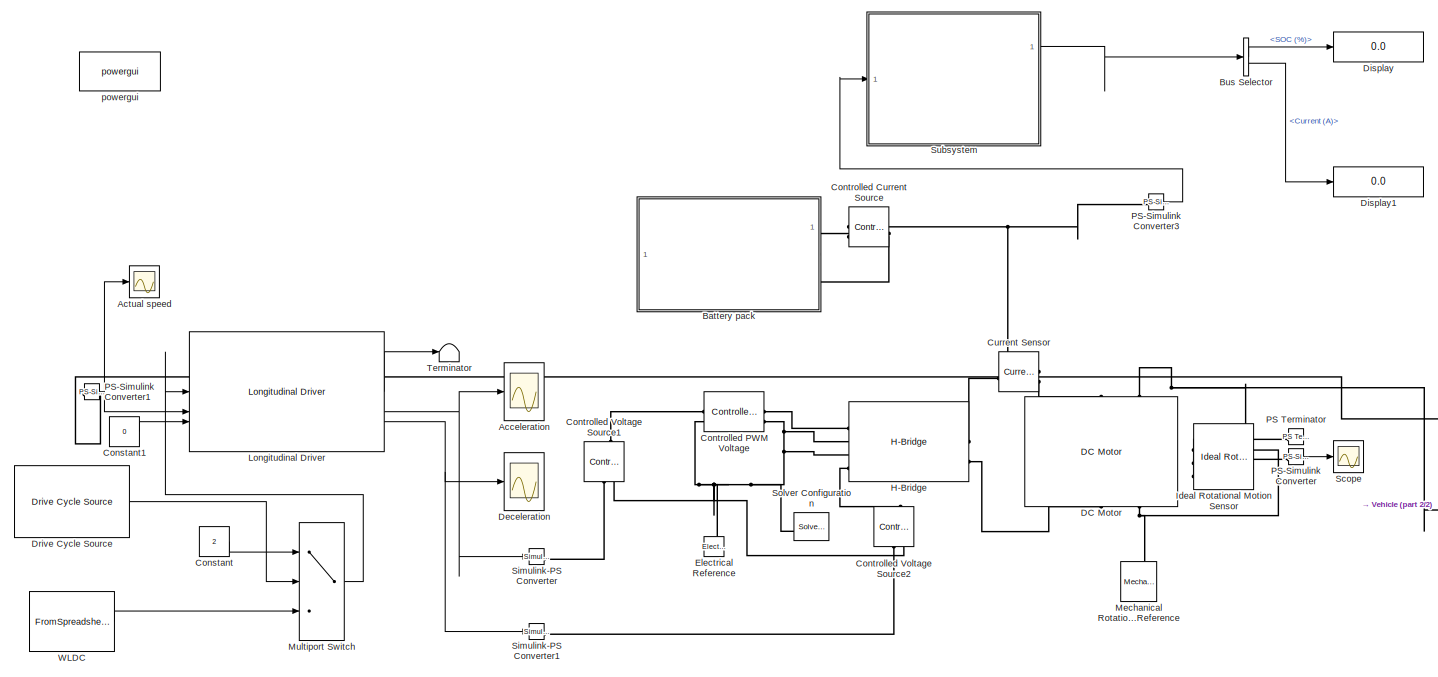
[diagram: root canvas - part 1/2, center side, full height]
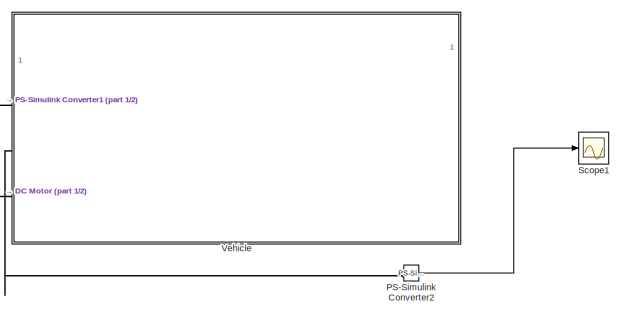
[diagram: root canvas - part 2/2, bottom right region]
MODEL slx_5bb3d1f6f6ad
KIND model
CONFIG AbsTol = auto
CONFIG EnableMultiTasking = off
CONFIG FixedStep = auto
CONFIG MaxStep = auto
CONFIG MinStep = auto
CONFIG RelTol = 1e-3
CONFIG SampleTimeConstraint = Unconstrained
CONFIG SolverName = VariableStepAuto
CONFIG StartTime = 0.0
CONFIG StopTime = 10.0
BLOCK [Scope] Acceleration
  Floating = off
  NumInputPorts = 1
  ScopeSpecificationString = Simulink.scopes.TimeScopeBlockCfg('CurrentConfiguration', extmgr.ConfigurationSet(extmgr.Configuration('Core','General UI',true),extmgr.Configuration('Core','Source UI',true),extmgr.Configuration('Sources','WiredSimulink',true,'DataLoggingVariableName','ScopeData1'),extmgr.Configuration('Visuals','Time Domain',true),extmgr.Configuration('Tools','Plot Navigation',true),extmgr.Configuration('Tools',...<+40ch>
BLOCK [Scope] Actual speed
  Floating = off
  NumInputPorts = 1
  ScopeSpecificationString = Simulink.scopes.TimeScopeBlockCfg('CurrentConfiguration', extmgr.ConfigurationSet(extmgr.Configuration('Core','General UI',true),extmgr.Configuration('Core','Source UI',true),extmgr.Configuration('Sources','WiredSimulink',true,'DataLoggingVariableName','ScopeData3'),extmgr.Configuration('Visuals','Time Domain',true),extmgr.Configuration('Tools','Plot Navigation',true),extmgr.Configuration('Tools',...<+40ch>
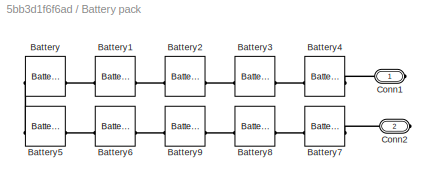
BLOCK [SubSystem] Battery pack
BLOCK [Reference] Battery pack/Battery  REF=batteryecm_lib/Battery
  LibrarySourceBlock = ee_lib/Sources/Battery
  SourceBlock = batteryecm_lib/Battery
  SourceType = Battery
BLOCK [Reference] Battery pack/Battery1  REF=batteryecm_lib/Battery
  LibrarySourceBlock = ee_lib/Sources/Battery
  SourceBlock = batteryecm_lib/Battery
  SourceType = Battery
BLOCK [Reference] Battery pack/Battery2  REF=batteryecm_lib/Battery
  LibrarySourceBlock = ee_lib/Sources/Battery
  SourceBlock = batteryecm_lib/Battery
  SourceType = Battery
BLOCK [Reference] Battery pack/Battery3  REF=batteryecm_lib/Battery
  LibrarySourceBlock = ee_lib/Sources/Battery
  SourceBlock = batteryecm_lib/Battery
  SourceType = Battery
BLOCK [Reference] Battery pack/Battery4  REF=batteryecm_lib/Battery
  LibrarySourceBlock = ee_lib/Sources/Battery
  SourceBlock = batteryecm_lib/Battery
  SourceType = Battery
BLOCK [Reference] Battery pack/Battery5  REF=batteryecm_lib/Battery
  LibrarySourceBlock = ee_lib/Sources/Battery
  NameLocation = top
  SourceBlock = batteryecm_lib/Battery
  SourceType = Battery
BLOCK [Reference] Battery pack/Battery6  REF=batteryecm_lib/Battery
  LibrarySourceBlock = ee_lib/Sources/Battery
  SourceBlock = batteryecm_lib/Battery
  SourceType = Battery
BLOCK [Reference] Battery pack/Battery7  REF=batteryecm_lib/Battery
  LibrarySourceBlock = ee_lib/Sources/Battery
  SourceBlock = batteryecm_lib/Battery
  SourceType = Battery
BLOCK [Reference] Battery pack/Battery8  REF=batteryecm_lib/Battery
  LibrarySourceBlock = ee_lib/Sources/Battery
  SourceBlock = batteryecm_lib/Battery
  SourceType = Battery
BLOCK [Reference] Battery pack/Battery9  REF=batteryecm_lib/Battery
  LibrarySourceBlock = ee_lib/Sources/Battery
  SourceBlock = batteryecm_lib/Battery
  SourceType = Battery
BLOCK [PMIOPort] Battery pack/Conn1
  Side = Right
BLOCK [PMIOPort] Battery pack/Conn2
  Port = 2
  Side = Right
BLOCK [BusSelector] Bus Selector
  OutputSignals = SOC (%),Current (A)
BLOCK [Constant] Constant
  Value = 2
BLOCK [Constant] Constant1
  Value = 0
BLOCK [Reference] Controlled Current Source  REF=fl_lib/Electrical/Electrical Sources/Controlled Current
Source
  NameLocation = top
  SourceBlock = fl_lib/Electrical/Electrical Sources/Controlled Current\nSource
  SourceType = Controlled Current\nSource
BLOCK [Reference] Controlled PWM Voltage  REF=ee_lib/Integrated Circuits/Controlled PWM
Voltage
  SourceBlock = ee_lib/Integrated Circuits/Controlled PWM\nVoltage
  SourceType = Controlled PWM\nVoltage
BLOCK [Reference] Controlled Voltage Source1  REF=fl_lib/Electrical/Electrical Sources/Controlled Voltage
Source
  NameLocation = right
  SourceBlock = fl_lib/Electrical/Electrical Sources/Controlled Voltage\nSource
  SourceType = Controlled Voltage\nSource
BLOCK [Reference] Controlled Voltage Source2  REF=fl_lib/Electrical/Electrical Sources/Controlled Voltage
Source
  NameLocation = right
  SourceBlock = fl_lib/Electrical/Electrical Sources/Controlled Voltage\nSource
  SourceType = Controlled Voltage\nSource
BLOCK [Reference] Current Sensor  REF=fl_lib/Electrical/Electrical Sensors/Current Sensor
  SourceBlock = fl_lib/Electrical/Electrical Sensors/Current Sensor
  SourceType = Current Sensor
BLOCK [Reference] DC Motor  REF=ee_lib/Electromechanical/Brushed Motors/DC Motor
  NameLocation = right
  SourceBlock = ee_lib/Electromechanical/Brushed Motors/DC Motor
  SourceType = DC Motor
BLOCK [Scope] Deceleration
  Floating = off
  NumInputPorts = 1
  ScopeSpecificationString = Simulink.scopes.TimeScopeBlockCfg('CurrentConfiguration', extmgr.ConfigurationSet(extmgr.Configuration('Core','General UI',true),extmgr.Configuration('Core','Source UI',true),extmgr.Configuration('Sources','WiredSimulink',true,'DataLoggingVariableName','ScopeData2'),extmgr.Configuration('Visuals','Time Domain',true),extmgr.Configuration('Tools','Plot Navigation',true),extmgr.Configuration('Tools',...<+40ch>
BLOCK [Display] Display
  Decimation = 1
BLOCK [Display] Display1
  Decimation = 1
BLOCK [Reference] Drive Cycle Source  REF=autolibshared/Drive Cycle Source
  AttributesFormatString = %<cycleVar> (%<tfinal>)
  LibrarySourceBlock = autolibscenario/Drive Cycle Source
  SourceBlock = autolibshared/Drive Cycle Source
  SourceType = Drive Cycle Source
BLOCK [Reference] Electrical Reference  REF=fl_lib/Electrical/Electrical Elements/Electrical Reference
  NameLocation = right
  SourceBlock = fl_lib/Electrical/Electrical Elements/Electrical Reference
  SourceType = Electrical Reference
BLOCK [Reference] H-Bridge  REF=ee_lib/Semiconductors &
Converters/Converters/H-Bridge
  SourceBlock = ee_lib/Semiconductors &\nConverters/Converters/H-Bridge
  SourceType = H-Bridge
BLOCK [Reference] Ideal Rotational Motion Sensor  REF=fl_lib/Mechanical/Mechanical Sensors/Ideal Rotational
Motion Sensor
  NameLocation = top
  SourceBlock = fl_lib/Mechanical/Mechanical Sensors/Ideal Rotational\nMotion Sensor
  SourceType = Ideal Rotational\nMotion Sensor
BLOCK [Reference] Longitudinal Driver  REF=autolibshared/Longitudinal Driver
  LibrarySourceBlock = autolibscenario/Longitudinal Driver
  SourceBlock = autolibshared/Longitudinal Driver
  SourceType = Longitudinal Driver
BLOCK [Reference] Mechanical Rotational Reference  REF=fl_lib/Mechanical/Rotational Elements/Mechanical
Rotational Reference
  NameLocation = right
  SourceBlock = fl_lib/Mechanical/Rotational Elements/Mechanical\nRotational Reference
  SourceType = Mechanical\nRotational Reference
BLOCK [MultiPortSwitch] Multiport Switch
  DiagnosticForDefault = Warning
  InputSameDT = off
  Inputs = 2
  SaturateOnIntegerOverflow = off
BLOCK [Reference] PS Terminator  REF=fl_lib/Physical Signals/Sinks/PS Terminator
  SourceBlock = fl_lib/Physical Signals/Sinks/PS Terminator
  SourceType = PS Terminator
BLOCK [Reference] PS-Simulink Converter  REF=nesl_utility/PS-Simulink
Converter
  SourceBlock = nesl_utility/PS-Simulink\nConverter
  SourceType = PS-Simulink\nConverter
BLOCK [Reference] PS-Simulink Converter1  REF=nesl_utility/PS-Simulink
Converter
  SourceBlock = nesl_utility/PS-Simulink\nConverter
  SourceType = PS-Simulink\nConverter
BLOCK [Reference] PS-Simulink Converter2  REF=nesl_utility/PS-Simulink
Converter
  SourceBlock = nesl_utility/PS-Simulink\nConverter
  SourceType = PS-Simulink\nConverter
BLOCK [Reference] PS-Simulink Converter3  REF=nesl_utility/PS-Simulink
Converter
  SourceBlock = nesl_utility/PS-Simulink\nConverter
  SourceType = PS-Simulink\nConverter
BLOCK [Scope] Scope
  Floating = off
  NumInputPorts = 1
  ScopeSpecificationString = Simulink.scopes.TimeScopeBlockCfg('CurrentConfiguration', extmgr.ConfigurationSet(extmgr.Configuration('Core','General UI',true),extmgr.Configuration('Core','Source UI',true),extmgr.Configuration('Sources','WiredSimulink',true),extmgr.Configuration('Visuals','Time Domain',true),extmgr.Configuration('Tools','Plot Navigation',true),extmgr.Configuration('Tools','Measurements',true)),'Version','2023a'...<+1ch>
BLOCK [Scope] Scope1
  Floating = off
  NumInputPorts = 1
  ScopeSpecificationString = Simulink.scopes.TimeScopeBlockCfg('CurrentConfiguration', extmgr.ConfigurationSet(extmgr.Configuration('Core','General UI',true),extmgr.Configuration('Core','Source UI',true),extmgr.Configuration('Sources','WiredSimulink',true,'DataLoggingVariableName','ScopeData1'),extmgr.Configuration('Visuals','Time Domain',true),extmgr.Configuration('Tools','Plot Navigation',true),extmgr.Configuration('Tools',...<+40ch>
BLOCK [Reference] Simulink-PS Converter  REF=nesl_utility/Simulink-PS
Converter
  SourceBlock = nesl_utility/Simulink-PS\nConverter
  SourceType = Simulink-PS\nConverter
BLOCK [Reference] Simulink-PS Converter1  REF=nesl_utility/Simulink-PS
Converter
  SourceBlock = nesl_utility/Simulink-PS\nConverter
  SourceType = Simulink-PS\nConverter
BLOCK [Reference] Solver Configuration  REF=nesl_utility/Solver
Configuration
  NameLocation = top
  SourceBlock = nesl_utility/Solver\nConfiguration
  SourceType = Solver\nConfiguration
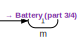
[diagram: Subsystem - part 1/4, top right region]
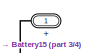
[diagram: Subsystem - part 2/4, middle right region]
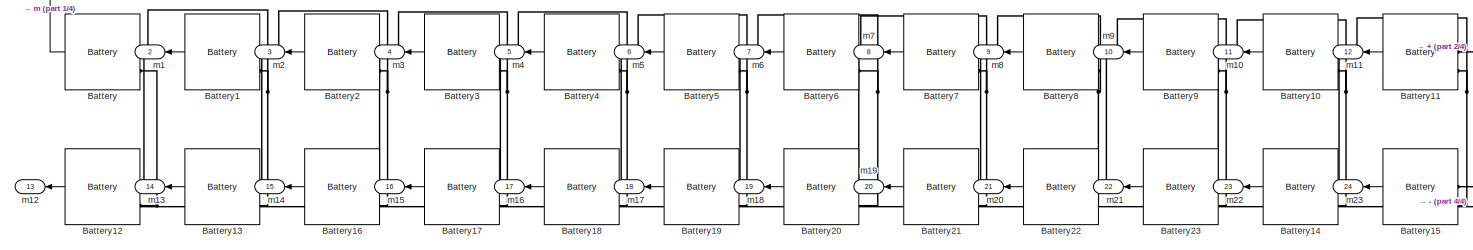
[diagram: Subsystem - part 3/4, full width, middle band]
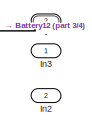
[diagram: Subsystem - part 4/4, bottom right region]
BLOCK [SubSystem] Subsystem
  PortSchema = {"entries":[{"content":{"sides":[{"content":{"connectorIds":["In1"]},"type":"ConnectorPlacement.EquallySpacedRectSide","uuid":"b765ce37-4556-4131-8d07-945cdd305015"},{"content":{"connectorIds":["Out1","Out2","Out3","Out4","Out5","Out6","Out7","Out8","Out9","Out10","Out11","Out12","Out13","Out14","Out15","Out16","Out17","Out18","Out19","Out20","Out21","Out22","Out23","Out24","RConn1","In2","RConn2"...<+422ch>
BLOCK [PMIOPort] Subsystem/+
  Side = Right
BLOCK [PMIOPort] Subsystem/-
  Port = 2
  Side = Right
BLOCK [Reference] Subsystem/Battery  REF=spsBatteryLib/Battery
  LibrarySourceBlock = sps_lib/Sources/Battery
  SourceBlock = spsBatteryLib/Battery
  SourceType = Battery
BLOCK [Reference] Subsystem/Battery1  REF=spsBatteryLib/Battery
  LibrarySourceBlock = sps_lib/Sources/Battery
  SourceBlock = spsBatteryLib/Battery
  SourceType = Battery
BLOCK [Reference] Subsystem/Battery10  REF=spsBatteryLib/Battery
  LibrarySourceBlock = sps_lib/Sources/Battery
  SourceBlock = spsBatteryLib/Battery
  SourceType = Battery
BLOCK [Reference] Subsystem/Battery11  REF=spsBatteryLib/Battery
  LibrarySourceBlock = sps_lib/Sources/Battery
  SourceBlock = spsBatteryLib/Battery
  SourceType = Battery
BLOCK [Reference] Subsystem/Battery12  REF=spsBatteryLib/Battery
  LibrarySourceBlock = sps_lib/Sources/Battery
  SourceBlock = spsBatteryLib/Battery
  SourceType = Battery
BLOCK [Reference] Subsystem/Battery13  REF=spsBatteryLib/Battery
  LibrarySourceBlock = sps_lib/Sources/Battery
  SourceBlock = spsBatteryLib/Battery
  SourceType = Battery
BLOCK [Reference] Subsystem/Battery14  REF=spsBatteryLib/Battery
  LibrarySourceBlock = sps_lib/Sources/Battery
  SourceBlock = spsBatteryLib/Battery
  SourceType = Battery
BLOCK [Reference] Subsystem/Battery15  REF=spsBatteryLib/Battery
  LibrarySourceBlock = sps_lib/Sources/Battery
  SourceBlock = spsBatteryLib/Battery
  SourceType = Battery
BLOCK [Reference] Subsystem/Battery16  REF=spsBatteryLib/Battery
  LibrarySourceBlock = sps_lib/Sources/Battery
  SourceBlock = spsBatteryLib/Battery
  SourceType = Battery
BLOCK [Reference] Subsystem/Battery17  REF=spsBatteryLib/Battery
  LibrarySourceBlock = sps_lib/Sources/Battery
  SourceBlock = spsBatteryLib/Battery
  SourceType = Battery
BLOCK [Reference] Subsystem/Battery18  REF=spsBatteryLib/Battery
  LibrarySourceBlock = sps_lib/Sources/Battery
  SourceBlock = spsBatteryLib/Battery
  SourceType = Battery
BLOCK [Reference] Subsystem/Battery19  REF=spsBatteryLib/Battery
  LibrarySourceBlock = sps_lib/Sources/Battery
  SourceBlock = spsBatteryLib/Battery
  SourceType = Battery
BLOCK [Reference] Subsystem/Battery2  REF=spsBatteryLib/Battery
  LibrarySourceBlock = sps_lib/Sources/Battery
  SourceBlock = spsBatteryLib/Battery
  SourceType = Battery
BLOCK [Reference] Subsystem/Battery20  REF=spsBatteryLib/Battery
  LibrarySourceBlock = sps_lib/Sources/Battery
  SourceBlock = spsBatteryLib/Battery
  SourceType = Battery
BLOCK [Reference] Subsystem/Battery21  REF=spsBatteryLib/Battery
  LibrarySourceBlock = sps_lib/Sources/Battery
  SourceBlock = spsBatteryLib/Battery
  SourceType = Battery
BLOCK [Reference] Subsystem/Battery22  REF=spsBatteryLib/Battery
  LibrarySourceBlock = sps_lib/Sources/Battery
  SourceBlock = spsBatteryLib/Battery
  SourceType = Battery
BLOCK [Reference] Subsystem/Battery23  REF=spsBatteryLib/Battery
  LibrarySourceBlock = sps_lib/Sources/Battery
  SourceBlock = spsBatteryLib/Battery
  SourceType = Battery
BLOCK [Reference] Subsystem/Battery3  REF=spsBatteryLib/Battery
  LibrarySourceBlock = sps_lib/Sources/Battery
  SourceBlock = spsBatteryLib/Battery
  SourceType = Battery
BLOCK [Reference] Subsystem/Battery4  REF=spsBatteryLib/Battery
  LibrarySourceBlock = sps_lib/Sources/Battery
  SourceBlock = spsBatteryLib/Battery
  SourceType = Battery
BLOCK [Reference] Subsystem/Battery5  REF=spsBatteryLib/Battery
  LibrarySourceBlock = sps_lib/Sources/Battery
  SourceBlock = spsBatteryLib/Battery
  SourceType = Battery
BLOCK [Reference] Subsystem/Battery6  REF=spsBatteryLib/Battery
  LibrarySourceBlock = sps_lib/Sources/Battery
  SourceBlock = spsBatteryLib/Battery
  SourceType = Battery
BLOCK [Reference] Subsystem/Battery7  REF=spsBatteryLib/Battery
  LibrarySourceBlock = sps_lib/Sources/Battery
  SourceBlock = spsBatteryLib/Battery
  SourceType = Battery
BLOCK [Reference] Subsystem/Battery8  REF=spsBatteryLib/Battery
  LibrarySourceBlock = sps_lib/Sources/Battery
  SourceBlock = spsBatteryLib/Battery
  SourceType = Battery
BLOCK [Reference] Subsystem/Battery9  REF=spsBatteryLib/Battery
  LibrarySourceBlock = sps_lib/Sources/Battery
  SourceBlock = spsBatteryLib/Battery
  SourceType = Battery
BLOCK [Inport] Subsystem/In2
  Port = 2
BLOCK [Inport] Subsystem/In3
BLOCK [Outport] Subsystem/m
BLOCK [Outport] Subsystem/m1
  Port = 2
BLOCK [Outport] Subsystem/m10
  Port = 11
BLOCK [Outport] Subsystem/m11
  Port = 12
BLOCK [Outport] Subsystem/m12
  Port = 13
BLOCK [Outport] Subsystem/m13
  Port = 14
BLOCK [Outport] Subsystem/m14
  Port = 15
BLOCK [Outport] Subsystem/m15
  Port = 16
BLOCK [Outport] Subsystem/m16
  Port = 17
BLOCK [Outport] Subsystem/m17
  Port = 18
BLOCK [Outport] Subsystem/m18
  Port = 19
BLOCK [Outport] Subsystem/m19
  Port = 20
BLOCK [Outport] Subsystem/m2
  Port = 3
BLOCK [Outport] Subsystem/m20
  Port = 21
BLOCK [Outport] Subsystem/m21
  Port = 22
BLOCK [Outport] Subsystem/m22
  Port = 23
BLOCK [Outport] Subsystem/m23
  Port = 24
BLOCK [Outport] Subsystem/m3
  Port = 4
BLOCK [Outport] Subsystem/m4
  Port = 5
BLOCK [Outport] Subsystem/m5
  Port = 6
BLOCK [Outport] Subsystem/m6
  Port = 7
BLOCK [Outport] Subsystem/m7
  Port = 8
BLOCK [Outport] Subsystem/m8
  Port = 9
BLOCK [Outport] Subsystem/m9
  Port = 10
BLOCK [Terminator] Terminator
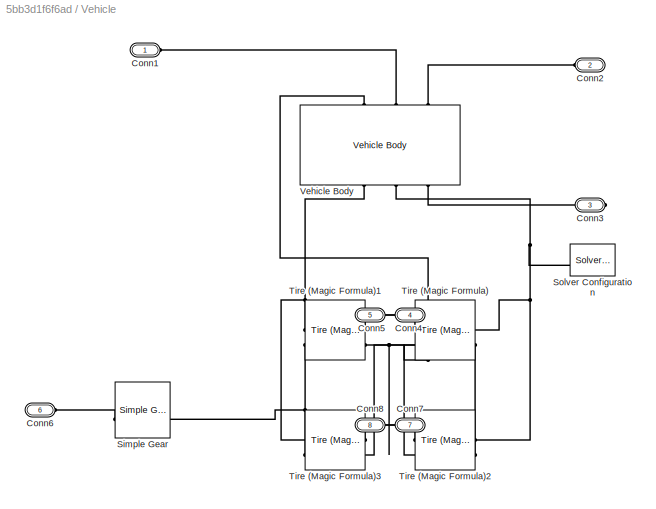
BLOCK [SubSystem] Vehicle
BLOCK [PMIOPort] Vehicle/Conn1
  Side = Left
BLOCK [PMIOPort] Vehicle/Conn2
  Port = 2
  Side = Left
BLOCK [PMIOPort] Vehicle/Conn3
  Port = 3
  Side = Right
BLOCK [PMIOPort] Vehicle/Conn4
  Port = 4
  Side = Right
BLOCK [PMIOPort] Vehicle/Conn5
  Port = 5
  Side = Right
BLOCK [PMIOPort] Vehicle/Conn6
  Port = 6
  Side = Left
BLOCK [PMIOPort] Vehicle/Conn7
  Port = 7
  Side = Right
BLOCK [PMIOPort] Vehicle/Conn8
  Port = 8
  Side = Right
BLOCK [Reference] Vehicle/Simple Gear  REF=sdl_lib/Gears/Simple Gear
  SourceBlock = sdl_lib/Gears/Simple Gear
  SourceType = Simple Gear
BLOCK [Reference] Vehicle/Solver Configuration  REF=nesl_utility/Solver
Configuration
  NameLocation = top
  SourceBlock = nesl_utility/Solver\nConfiguration
  SourceType = Solver\nConfiguration
BLOCK [Reference] Vehicle/Tire (Magic Formula)  REF=sdl_lib/Tires & Vehicles/Tire (Magic Formula)
  SourceBlock = sdl_lib/Tires & Vehicles/Tire (Magic Formula)
  SourceType = Tire (Magic Formula)
BLOCK [Reference] Vehicle/Tire (Magic Formula)1  REF=sdl_lib/Tires & Vehicles/Tire (Magic Formula)
  SourceBlock = sdl_lib/Tires & Vehicles/Tire (Magic Formula)
  SourceType = Tire (Magic Formula)
BLOCK [Reference] Vehicle/Tire (Magic Formula)2  REF=sdl_lib/Tires & Vehicles/Tire (Magic Formula)
  SourceBlock = sdl_lib/Tires & Vehicles/Tire (Magic Formula)
  SourceType = Tire (Magic Formula)
BLOCK [Reference] Vehicle/Tire (Magic Formula)3  REF=sdl_lib/Tires & Vehicles/Tire (Magic Formula)
  SourceBlock = sdl_lib/Tires & Vehicles/Tire (Magic Formula)
  SourceType = Tire (Magic Formula)
BLOCK [Reference] Vehicle/Vehicle Body  REF=sdl_lib/Tires & Vehicles/Vehicle Body
  NameLocation = right
  SourceBlock = sdl_lib/Tires & Vehicles/Vehicle Body
  SourceType = Vehicle Body
BLOCK [FromSpreadsheet] WLDC
  FileName = WLTC_Datasheet
BLOCK [Reference] powergui  REF=spspowerguiLib/powergui
  LibrarySourceBlock = sps_lib/powergui
  Priority = 1
  SourceBlock = spspowerguiLib/powergui
  SourceType = PSB option menu block
LINE Bus Selector:1 -> Display:1
LINE Bus Selector:2 -> Display1:1
LINE Constant1:1 -> Longitudinal Driver:3
LINE Constant:1 -> Multiport Switch:1
LINE Drive Cycle Source:1 -> Multiport Switch:2
LINE Longitudinal Driver:1 -> Terminator:1
NET Longitudinal Driver:2 -> Acceleration:1, Simulink-PS Converter:1
NET Longitudinal Driver:3 -> Deceleration:1, Simulink-PS Converter1:1
LINE Multiport Switch:1 -> Longitudinal Driver:1
NET PS-Simulink Converter1:1 -> Actual speed:1, Longitudinal Driver:2
LINE PS-Simulink Converter2:1 -> Scope1:1
LINE PS-Simulink Converter3:1 -> Subsystem:1
LINE PS-Simulink Converter:1 -> Scope:1
LINE Subsystem/Battery10:1 -> Subsystem/m10:1
LINE Subsystem/Battery11:1 -> Subsystem/m11:1
LINE Subsystem/Battery12:1 -> Subsystem/m12:1
LINE Subsystem/Battery13:1 -> Subsystem/m13:1
LINE Subsystem/Battery14:1 -> Subsystem/m22:1
LINE Subsystem/Battery15:1 -> Subsystem/m23:1
LINE Subsystem/Battery16:1 -> Subsystem/m14:1
LINE Subsystem/Battery17:1 -> Subsystem/m15:1
LINE Subsystem/Battery18:1 -> Subsystem/m16:1
LINE Subsystem/Battery19:1 -> Subsystem/m17:1
LINE Subsystem/Battery1:1 -> Subsystem/m1:1
LINE Subsystem/Battery20:1 -> Subsystem/m18:1
LINE Subsystem/Battery21:1 -> Subsystem/m19:1
LINE Subsystem/Battery22:1 -> Subsystem/m20:1
LINE Subsystem/Battery23:1 -> Subsystem/m21:1
LINE Subsystem/Battery2:1 -> Subsystem/m2:1
LINE Subsystem/Battery3:1 -> Subsystem/m3:1
LINE Subsystem/Battery4:1 -> Subsystem/m4:1
LINE Subsystem/Battery5:1 -> Subsystem/m5:1
LINE Subsystem/Battery6:1 -> Subsystem/m6:1
LINE Subsystem/Battery7:1 -> Subsystem/m7:1
LINE Subsystem/Battery8:1 -> Subsystem/m8:1
LINE Subsystem/Battery9:1 -> Subsystem/m9:1
LINE Subsystem/Battery:1 -> Subsystem/m:1
LINE Subsystem:1 -> Bus Selector:1
LINE WLDC:1 -> Multiport Switch:3
PLINE Battery pack/Battery1:LConn1 -- Battery pack/Battery2:RConn1
PLINE Battery pack/Battery1:RConn1 -- Battery pack/Battery:LConn1
PLINE Battery pack/Battery2:LConn1 -- Battery pack/Battery3:RConn1
PLINE Battery pack/Battery3:LConn1 -- Battery pack/Battery4:RConn1
PLINE Battery pack/Battery4:LConn1 -- Battery pack/Conn1:RConn1
PLINE Battery pack/Battery5:LConn1 -- Battery pack/Battery:RConn1
PLINE Battery pack/Battery5:RConn1 -- Battery pack/Battery6:LConn1
PLINE Battery pack/Battery6:RConn1 -- Battery pack/Battery9:LConn1
PLINE Battery pack/Battery7:LConn1 -- Battery pack/Battery8:RConn1
PLINE Battery pack/Battery7:RConn1 -- Battery pack/Conn2:RConn1
PLINE Battery pack/Battery8:LConn1 -- Battery pack/Battery9:RConn1
PLINE Battery pack:RConn1 -- Controlled Current Source:LConn1
PLINE Battery pack:RConn2 -- Controlled Current Source:RConn2
PNET net1: Controlled Current Source:RConn1 -- Current Sensor:RConn1 -- PS-Simulink Converter3:LConn1
PLINE Controlled PWM Voltage:LConn1 -- Controlled Voltage Source1:LConn1
PNET net2: Controlled PWM Voltage:LConn2 -- Controlled PWM Voltage:RConn2 -- Controlled Voltage Source1:RConn2 -- Controlled Voltage Source2:RConn2 -- Electrical Reference:LConn1 -- H-Bridge:LConn2 -- H-Bridge:LConn3 -- Solver Configuration:RConn1
PLINE Controlled PWM Voltage:RConn1 -- H-Bridge:LConn1
PLINE Controlled Voltage Source1:RConn1 -- Simulink-PS Converter:RConn1
PLINE Controlled Voltage Source2:LConn1 -- H-Bridge:LConn4
PLINE Controlled Voltage Source2:RConn1 -- Simulink-PS Converter1:RConn1
PLINE Current Sensor:LConn1 -- H-Bridge:RConn1
PLINE Current Sensor:RConn2 -- DC Motor:LConn1
PNET net3: DC Motor:LConn2 -- Ideal Rotational Motion Sensor:LConn1 -- Vehicle:LConn3
PLINE DC Motor:RConn1 -- H-Bridge:RConn2
PNET net4: DC Motor:RConn2 -- Ideal Rotational Motion Sensor:RConn1 -- Mechanical Rotational Reference:LConn1
PLINE Ideal Rotational Motion Sensor:RConn2 -- PS-Simulink Converter:LConn1
PLINE Ideal Rotational Motion Sensor:RConn3 -- PS Terminator:LConn1
PLINE PS-Simulink Converter1:LConn1 -- Vehicle:LConn1
PLINE PS-Simulink Converter2:LConn1 -- Vehicle:LConn2
PNET net5: Subsystem/+:RConn1 -- Subsystem/Battery11:LConn1 -- Subsystem/Battery15:LConn1
PNET net6: Subsystem/-:RConn1 -- Subsystem/Battery12:LConn2 -- Subsystem/Battery:LConn2
PNET net7: Subsystem/Battery10:LConn1 -- Subsystem/Battery11:LConn2 -- Subsystem/Battery14:LConn1 -- Subsystem/Battery15:LConn2
PNET net8: Subsystem/Battery10:LConn2 -- Subsystem/Battery14:LConn2 -- Subsystem/Battery23:LConn1 -- Subsystem/Battery9:LConn1
PNET net9: Subsystem/Battery12:LConn1 -- Subsystem/Battery13:LConn2 -- Subsystem/Battery1:LConn2 -- Subsystem/Battery:LConn1
PNET net10: Subsystem/Battery13:LConn1 -- Subsystem/Battery16:LConn2 -- Subsystem/Battery1:LConn1 -- Subsystem/Battery2:LConn2
PNET net11: Subsystem/Battery16:LConn1 -- Subsystem/Battery17:LConn2 -- Subsystem/Battery2:LConn1 -- Subsystem/Battery3:LConn2
PNET net12: Subsystem/Battery17:LConn1 -- Subsystem/Battery18:LConn2 -- Subsystem/Battery3:LConn1 -- Subsystem/Battery4:LConn2
PNET net13: Subsystem/Battery18:LConn1 -- Subsystem/Battery19:LConn2 -- Subsystem/Battery4:LConn1 -- Subsystem/Battery5:LConn2
PNET net14: Subsystem/Battery19:LConn1 -- Subsystem/Battery20:LConn2 -- Subsystem/Battery5:LConn1 -- Subsystem/Battery6:LConn2
PNET net15: Subsystem/Battery20:LConn1 -- Subsystem/Battery21:LConn2 -- Subsystem/Battery6:LConn1 -- Subsystem/Battery7:LConn2
PNET net16: Subsystem/Battery21:LConn1 -- Subsystem/Battery22:LConn2 -- Subsystem/Battery7:LConn1 -- Subsystem/Battery8:LConn2
PNET net17: Subsystem/Battery22:LConn1 -- Subsystem/Battery23:LConn2 -- Subsystem/Battery8:LConn1 -- Subsystem/Battery9:LConn2
PLINE Vehicle/Conn1:RConn1 -- Vehicle/Vehicle Body:LConn2
PLINE Vehicle/Conn2:RConn1 -- Vehicle/Vehicle Body:LConn3
PLINE Vehicle/Conn3:RConn1 -- Vehicle/Vehicle Body:RConn3
PLINE Vehicle/Conn4:RConn1 -- Vehicle/Tire (Magic Formula)1:RConn1
PLINE Vehicle/Conn5:RConn1 -- Vehicle/Tire (Magic Formula):RConn1
PLINE Vehicle/Conn6:RConn1 -- Vehicle/Simple Gear:LConn1
PLINE Vehicle/Conn7:RConn1 -- Vehicle/Tire (Magic Formula)3:RConn1
PLINE Vehicle/Conn8:RConn1 -- Vehicle/Tire (Magic Formula)2:RConn1
PNET net18: Vehicle/Simple Gear:RConn1 -- Vehicle/Tire (Magic Formula)1:LConn2 -- Vehicle/Tire (Magic Formula)3:LConn2
PNET net19: Vehicle/Solver Configuration:RConn1 -- Vehicle/Tire (Magic Formula)2:LConn1 -- Vehicle/Tire (Magic Formula):LConn1 -- Vehicle/Vehicle Body:RConn2
PNET net20: Vehicle/Tire (Magic Formula)1:LConn1 -- Vehicle/Tire (Magic Formula)3:LConn1 -- Vehicle/Vehicle Body:RConn1
PNET net21: Vehicle/Tire (Magic Formula)1:RConn2 -- Vehicle/Tire (Magic Formula)2:RConn2 -- Vehicle/Tire (Magic Formula)3:RConn2 -- Vehicle/Tire (Magic Formula):RConn2 -- Vehicle/Vehicle Body:LConn1
PLINE Vehicle/Tire (Magic Formula)2:LConn2 -- Vehicle/Tire (Magic Formula):LConn2
note: NET lines group one-source signal fan-out (src -> all destinations, sorted); 1:1 wires keep LINE; PNET lines group multi-terminal physical nets as a canonical sorted terminal list (undirected conserving connections); 2-terminal nets keep the pairwise PLINE form
